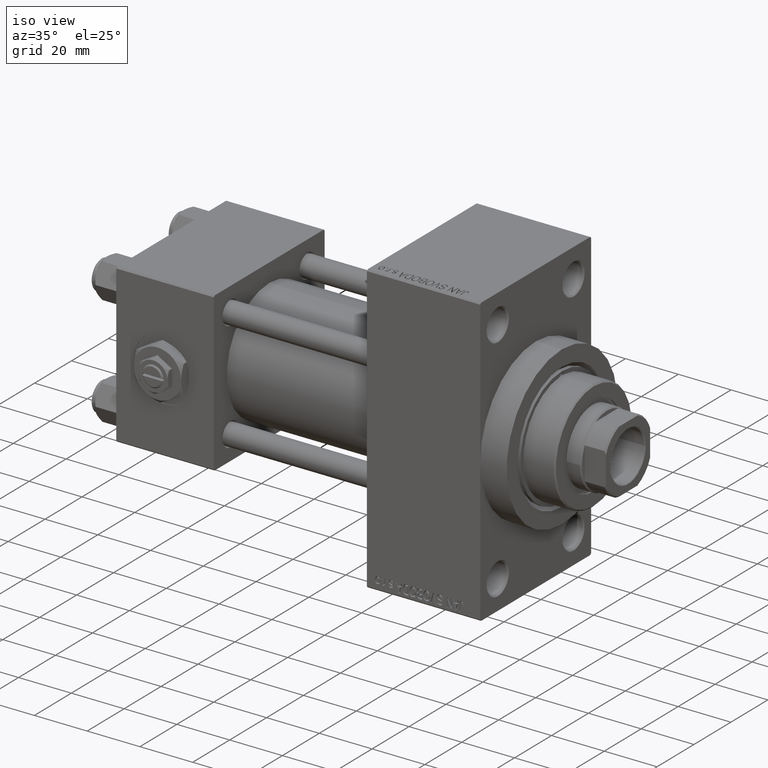
[diagram: clean part render]
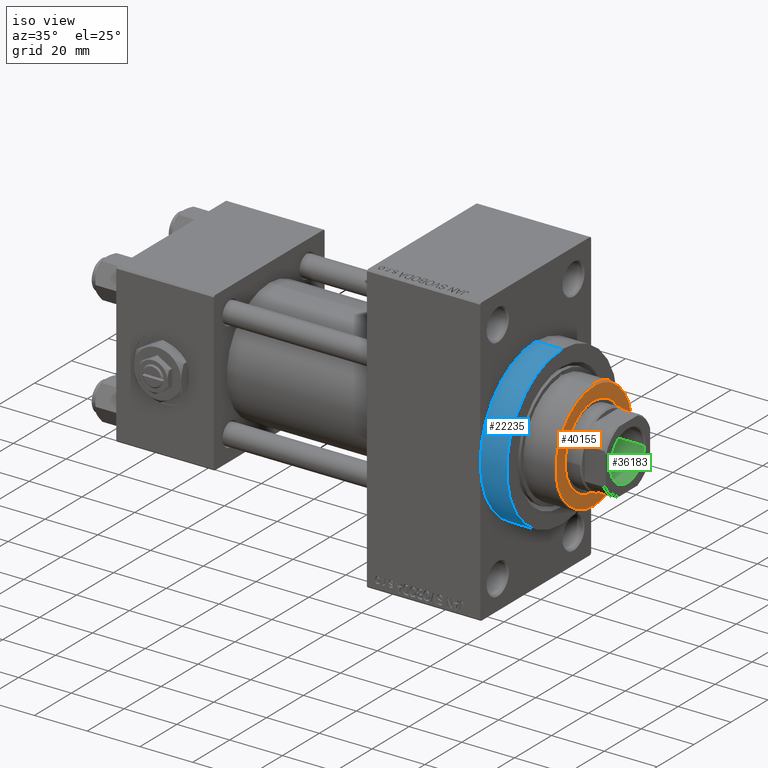
[diagram: same view with three faces highlighted in distinct colors, each labeled with its STEP entity id]
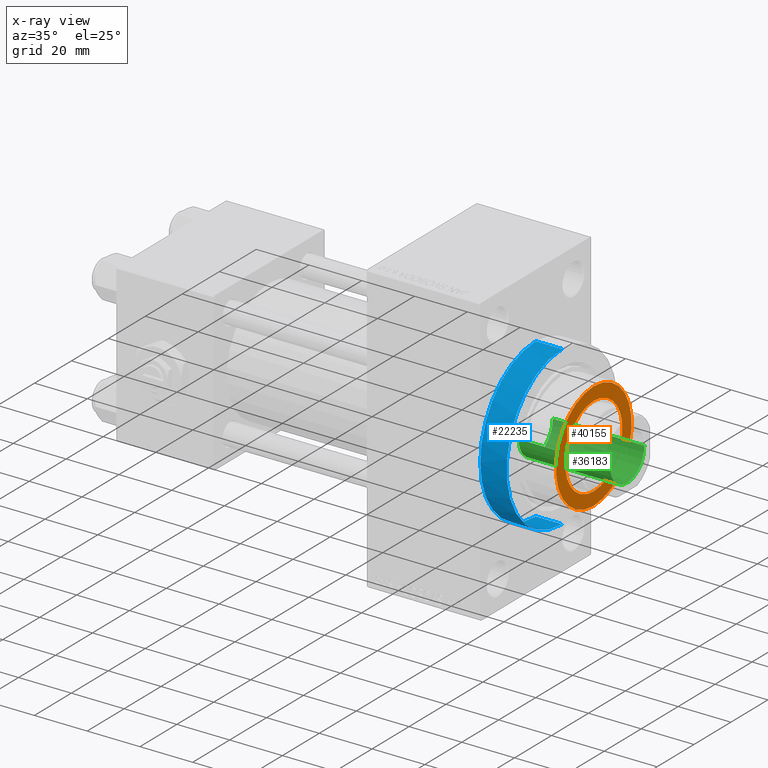
[diagram: x-ray of the same camera — body ghosted, the three highlighted faces saturated]
A machine part, iso view with three faces highlighted in distinct colors.
The next image is the same camera in x-ray (body ghosted, the three faces saturated) — at least one of them is partly hidden behind the body in this view.
Their STEP definitions:

[orange] entity #40155 — the highlighted planar face has unit normal (1, -0, -0).
#787 = FACE_BOUND ( 'NONE', #39779, .T. ) ;
#1779 = DIRECTION ( 'NONE',  ( 1.000000000000000000, 0.000000000000000000, -0.000000000000000000 ) ) ;
#2885 = EDGE_CURVE ( 'NONE', #43644, #44616, #23607, .T. ) ;
#3160 = DIRECTION ( 'NONE',  ( 1.000000000000000000, 0.000000000000000000, 0.000000000000000000 ) ) ;
#3265 = CARTESIAN_POINT ( 'NONE',  ( -15.50000000000000000, 1.898202538678397557E-15, 55.26000000000000512 ) ) ;
#5214 = PLANE ( 'NONE',  #35340 ) ;
#7017 = EDGE_CURVE ( 'NONE', #31053, #36398, #24556, .T. ) ;
#7096 = CARTESIAN_POINT ( 'NONE',  ( 0.000000000000000000, 0.000000000000000000, 55.26000000000000512 ) ) ;
#8525 = DIRECTION ( 'NONE',  ( 1.000000000000000000, 0.000000000000000000, 0.000000000000000000 ) ) ;
#10206 = CARTESIAN_POINT ( 'NONE',  ( 0.000000000000000000, 0.000000000000000000, 55.26000000000000512 ) ) ;
#10944 = CIRCLE ( 'NONE', #13340, 20.50000000000000355 ) ;
#11320 = ORIENTED_EDGE ( 'NONE', *, *, #17453, .F. ) ;
#12184 = CARTESIAN_POINT ( 'NONE',  ( -20.50000000000000355, 0.000000000000000000, 55.26000000000000512 ) ) ;
#12844 = AXIS2_PLACEMENT_3D ( 'NONE', #35752, #12959, #28309 ) ;
#12959 = DIRECTION ( 'NONE',  ( 0.000000000000000000, 0.000000000000000000, 1.000000000000000000 ) ) ;
#13340 = AXIS2_PLACEMENT_3D ( 'NONE', #20105, #35257, #8525 ) ;
#13385 = AXIS2_PLACEMENT_3D ( 'NONE', #10206, #21788, #45110 ) ;
#13515 = AXIS2_PLACEMENT_3D ( 'NONE', #7096, #18453, #3160 ) ;
#16116 = CARTESIAN_POINT ( 'NONE',  ( 0.000000000000000000, 0.000000000000000000, 55.26000000000000512 ) ) ;
#17453 = EDGE_CURVE ( 'NONE', #44616, #43644, #34173, .T. ) ;
#17828 = CARTESIAN_POINT ( 'NONE',  ( 20.50000000000000355, 2.541142108230758269E-15, 55.26000000000000512 ) ) ;
#18453 = DIRECTION ( 'NONE',  ( 0.000000000000000000, 0.000000000000000000, 1.000000000000000000 ) ) ;
#20105 = CARTESIAN_POINT ( 'NONE',  ( 0.000000000000000000, 0.000000000000000000, 55.26000000000000512 ) ) ;
#21788 = DIRECTION ( 'NONE',  ( 0.000000000000000000, 0.000000000000000000, 1.000000000000000000 ) ) ;
#23607 = CIRCLE ( 'NONE', #13385, 15.50000000000000000 ) ;
#24556 = CIRCLE ( 'NONE', #13515, 20.50000000000000355 ) ;
#26404 = ORIENTED_EDGE ( 'NONE', *, *, #2885, .F. ) ;
#28252 = ORIENTED_EDGE ( 'NONE', *, *, #33758, .T. ) ;
#28309 = DIRECTION ( 'NONE',  ( 1.000000000000000000, 0.000000000000000000, 0.000000000000000000 ) ) ;
#31053 = VERTEX_POINT ( 'NONE', #12184 ) ;
#33758 = EDGE_CURVE ( 'NONE', #36398, #31053, #10944, .T. ) ;
#34173 = CIRCLE ( 'NONE', #12844, 15.50000000000000000 ) ;
#35257 = DIRECTION ( 'NONE',  ( 0.000000000000000000, 0.000000000000000000, 1.000000000000000000 ) ) ;
#35340 = AXIS2_PLACEMENT_3D ( 'NONE', #16116, #42875, #1779 ) ;
#35752 = CARTESIAN_POINT ( 'NONE',  ( 0.000000000000000000, 0.000000000000000000, 55.26000000000000512 ) ) ;
#36398 = VERTEX_POINT ( 'NONE', #17828 ) ;
#37937 = CARTESIAN_POINT ( 'NONE',  ( 15.50000000000000000, 0.000000000000000000, 55.26000000000000512 ) ) ;
#39779 = EDGE_LOOP ( 'NONE', ( #11320, #26404 ) ) ;
#40155 = ADVANCED_FACE ( 'NONE', ( #787, #46602 ), #5214, .T. ) ;
#42875 = DIRECTION ( 'NONE',  ( 0.000000000000000000, 0.000000000000000000, 1.000000000000000000 ) ) ;
#43270 = EDGE_LOOP ( 'NONE', ( #48743, #28252 ) ) ;
#43644 = VERTEX_POINT ( 'NONE', #3265 ) ;
#44616 = VERTEX_POINT ( 'NONE', #37937 ) ;
#45110 = DIRECTION ( 'NONE',  ( 1.000000000000000000, 0.000000000000000000, 0.000000000000000000 ) ) ;
#46602 = FACE_OUTER_BOUND ( 'NONE', #43270, .T. ) ;
#48743 = ORIENTED_EDGE ( 'NONE', *, *, #7017, .T. ) ;

[blue] entity #22235 — the highlighted cylindrical surface (partial cylindrical patch) has radius 30 mm, axis along (-1, -0, -0).
#974 = EDGE_CURVE ( 'NONE', #43099, #43847, #10119, .T. ) ;
#1667 = CARTESIAN_POINT ( 'NONE',  ( 138.0000000000000000, 0.000000000000000000, 30.00000000000000000 ) ) ;
#3631 = CARTESIAN_POINT ( 'NONE',  ( 138.0000000000000000, 3.673940397442059178E-15, -30.00000000000000000 ) ) ;
#4648 = DIRECTION ( 'NONE',  ( 0.000000000000000000, 0.000000000000000000, 1.000000000000000000 ) ) ;
#4876 = CARTESIAN_POINT ( 'NONE',  ( 148.0000000000000284, 0.000000000000000000, 30.00000000000000000 ) ) ;
#5640 = VECTOR ( 'NONE', #34876, 1000.000000000000000 ) ;
#7259 = CARTESIAN_POINT ( 'NONE',  ( 148.0000000000000284, 0.000000000000000000, 0.000000000000000000 ) ) ;
#8114 = CYLINDRICAL_SURFACE ( 'NONE', #28030, 30.00000000000000000 ) ;
#8188 = EDGE_CURVE ( 'NONE', #18322, #16400, #12326, .T. ) ;
#8601 = LINE ( 'NONE', #4876, #38581 ) ;
#9354 = AXIS2_PLACEMENT_3D ( 'NONE', #44304, #39850, #21707 ) ;
#9847 = CIRCLE ( 'NONE', #32772, 30.00000000000000000 ) ;
#10119 = CIRCLE ( 'NONE', #9354, 30.00000000000000000 ) ;
#12326 = LINE ( 'NONE', #19734, #5640 ) ;
#14361 = ORIENTED_EDGE ( 'NONE', *, *, #43185, .T. ) ;
#15278 = DIRECTION ( 'NONE',  ( -1.000000000000000000, -0.000000000000000000, -0.000000000000000000 ) ) ;
#15746 = ORIENTED_EDGE ( 'NONE', *, *, #34163, .T. ) ;
#16024 = CARTESIAN_POINT ( 'NONE',  ( 148.0000000000000284, 0.000000000000000000, 0.000000000000000000 ) ) ;
#16400 = VERTEX_POINT ( 'NONE', #3631 ) ;
#17622 = ORIENTED_EDGE ( 'NONE', *, *, #8188, .F. ) ;
#18322 = VERTEX_POINT ( 'NONE', #28798 ) ;
#19734 = CARTESIAN_POINT ( 'NONE',  ( 148.0000000000000284, 3.673940397442059178E-15, -30.00000000000000000 ) ) ;
#19940 = DIRECTION ( 'NONE',  ( -1.000000000000000000, -0.000000000000000000, -0.000000000000000000 ) ) ;
#21561 = EDGE_CURVE ( 'NONE', #31429, #18322, #9847, .T. ) ;
#21707 = DIRECTION ( 'NONE',  ( 0.000000000000000000, 0.000000000000000000, -1.000000000000000000 ) ) ;
#22211 = DIRECTION ( 'NONE',  ( 1.000000000000000000, 0.000000000000000000, 0.000000000000000000 ) ) ;
#22235 = ADVANCED_FACE ( 'NONE', ( #34593 ), #8114, .T. ) ;
#22557 = DIRECTION ( 'NONE',  ( 1.000000000000000000, 0.000000000000000000, 0.000000000000000000 ) ) ;
#26051 = DIRECTION ( 'NONE',  ( 0.000000000000000000, 0.000000000000000000, -1.000000000000000000 ) ) ;
#26188 = CARTESIAN_POINT ( 'NONE',  ( 138.0000000000000000, 0.000000000000000000, 0.000000000000000000 ) ) ;
#28030 = AXIS2_PLACEMENT_3D ( 'NONE', #16024, #15278, #4648 ) ;
#28798 = CARTESIAN_POINT ( 'NONE',  ( 148.0000000000000284, 3.673940397442059178E-15, -30.00000000000000000 ) ) ;
#31429 = VERTEX_POINT ( 'NONE', #44027 ) ;
#32670 = DIRECTION ( 'NONE',  ( 0.000000000000000000, 0.000000000000000000, -1.000000000000000000 ) ) ;
#32772 = AXIS2_PLACEMENT_3D ( 'NONE', #7259, #22557, #26051 ) ;
#34163 = EDGE_CURVE ( 'NONE', #43847, #16400, #37021, .T. ) ;
#34593 = FACE_OUTER_BOUND ( 'NONE', #46714, .T. ) ;
#34664 = AXIS2_PLACEMENT_3D ( 'NONE', #26188, #22211, #32670 ) ;
#34876 = DIRECTION ( 'NONE',  ( -1.000000000000000000, -0.000000000000000000, -0.000000000000000000 ) ) ;
#37021 = CIRCLE ( 'NONE', #34664, 30.00000000000000000 ) ;
#38581 = VECTOR ( 'NONE', #19940, 1000.000000000000000 ) ;
#39850 = DIRECTION ( 'NONE',  ( 1.000000000000000000, 0.000000000000000000, 0.000000000000000000 ) ) ;
#41602 = ORIENTED_EDGE ( 'NONE', *, *, #974, .T. ) ;
#42844 = CARTESIAN_POINT ( 'NONE',  ( 138.0000000000000000, -30.00000000000000000, 0.000000000000000000 ) ) ;
#43099 = VERTEX_POINT ( 'NONE', #1667 ) ;
#43185 = EDGE_CURVE ( 'NONE', #31429, #43099, #8601, .T. ) ;
#43847 = VERTEX_POINT ( 'NONE', #42844 ) ;
#44027 = CARTESIAN_POINT ( 'NONE',  ( 148.0000000000000284, 0.000000000000000000, 30.00000000000000000 ) ) ;
#44304 = CARTESIAN_POINT ( 'NONE',  ( 138.0000000000000000, 0.000000000000000000, 0.000000000000000000 ) ) ;
#44907 = ORIENTED_EDGE ( 'NONE', *, *, #21561, .F. ) ;
#46714 = EDGE_LOOP ( 'NONE', ( #17622, #44907, #14361, #41602, #15746 ) ) ;

[green] entity #36183 — the highlighted cylindrical surface (edge-blend (fillet) strip) has radius 9.25 mm, axis along (1, 0, 0).
#889 = DIRECTION ( 'NONE',  ( 1.000000000000000000, 0.000000000000000000, 0.000000000000000000 ) ) ;
#2431 = VECTOR ( 'NONE', #30206, 1000.000000000000000 ) ;
#3341 = CYLINDRICAL_SURFACE ( 'NONE', #40367, 9.249999999999994671 ) ;
#3482 = VERTEX_POINT ( 'NONE', #32170 ) ;
#6989 = CIRCLE ( 'NONE', #29911, 9.249999999999992895 ) ;
#7038 = CARTESIAN_POINT ( 'NONE',  ( 0.000000000000000000, 0.000000000000000000, 136.0000000000000000 ) ) ;
#7238 = EDGE_CURVE ( 'NONE', #48266, #3482, #8773, .T. ) ;
#8773 = CIRCLE ( 'NONE', #30882, 9.249999999999994671 ) ;
#10278 = CARTESIAN_POINT ( 'NONE',  ( -9.249999999999992895, 1.132798289211300712E-15, 101.0000000000000000 ) ) ;
#13002 = EDGE_CURVE ( 'NONE', #31707, #3482, #45102, .T. ) ;
#15102 = CARTESIAN_POINT ( 'NONE',  ( 9.249999999999994671, 0.000000000000000000, 135.7000000000000455 ) ) ;
#16151 = DIRECTION ( 'NONE',  ( -0.000000000000000000, -0.000000000000000000, 1.000000000000000000 ) ) ;
#16281 = EDGE_CURVE ( 'NONE', #32930, #48266, #36569, .T. ) ;
#19533 = CARTESIAN_POINT ( 'NONE',  ( -9.249999999999994671, 1.132798289211300909E-15, 136.0000000000000000 ) ) ;
#20834 = CARTESIAN_POINT ( 'NONE',  ( 9.249999999999992895, 0.000000000000000000, 101.0000000000000000 ) ) ;
#25080 = ORIENTED_EDGE ( 'NONE', *, *, #13002, .F. ) ;
#27004 = VECTOR ( 'NONE', #43789, 1000.000000000000000 ) ;
#27290 = ORIENTED_EDGE ( 'NONE', *, *, #16281, .T. ) ;
#29391 = CARTESIAN_POINT ( 'NONE',  ( 9.249999999999994671, 0.000000000000000000, 136.0000000000000000 ) ) ;
#29790 = DIRECTION ( 'NONE',  ( -0.000000000000000000, -0.000000000000000000, 1.000000000000000000 ) ) ;
#29911 = AXIS2_PLACEMENT_3D ( 'NONE', #38935, #16151, #42651 ) ;
#30028 = ORIENTED_EDGE ( 'NONE', *, *, #44699, .F. ) ;
#30206 = DIRECTION ( 'NONE',  ( -0.000000000000000000, -0.000000000000000000, 1.000000000000000000 ) ) ;
#30882 = AXIS2_PLACEMENT_3D ( 'NONE', #45461, #38262, #889 ) ;
#31707 = VERTEX_POINT ( 'NONE', #10278 ) ;
#32170 = CARTESIAN_POINT ( 'NONE',  ( -9.249999999999994671, 1.132798289211300909E-15, 135.7000000000000455 ) ) ;
#32930 = VERTEX_POINT ( 'NONE', #20834 ) ;
#36183 = ADVANCED_FACE ( 'NONE', ( #40944 ), #3341, .F. ) ;
#36569 = LINE ( 'NONE', #29391, #27004 ) ;
#38262 = DIRECTION ( 'NONE',  ( 0.000000000000000000, 0.000000000000000000, 1.000000000000000000 ) ) ;
#38935 = CARTESIAN_POINT ( 'NONE',  ( 0.000000000000000000, 0.000000000000000000, 101.0000000000000000 ) ) ;
#39863 = ORIENTED_EDGE ( 'NONE', *, *, #7238, .T. ) ;
#40367 = AXIS2_PLACEMENT_3D ( 'NONE', #7038, #29790, #40466 ) ;
#40466 = DIRECTION ( 'NONE',  ( 1.000000000000000000, 0.000000000000000000, 0.000000000000000000 ) ) ;
#40944 = FACE_OUTER_BOUND ( 'NONE', #47829, .T. ) ;
#42651 = DIRECTION ( 'NONE',  ( 1.000000000000000000, 0.000000000000000000, 0.000000000000000000 ) ) ;
#43789 = DIRECTION ( 'NONE',  ( -0.000000000000000000, -0.000000000000000000, 1.000000000000000000 ) ) ;
#44699 = EDGE_CURVE ( 'NONE', #32930, #31707, #6989, .T. ) ;
#45102 = LINE ( 'NONE', #19533, #2431 ) ;
#45461 = CARTESIAN_POINT ( 'NONE',  ( 0.000000000000000000, 0.000000000000000000, 135.7000000000000455 ) ) ;
#47829 = EDGE_LOOP ( 'NONE', ( #25080, #30028, #27290, #39863 ) ) ;
#48266 = VERTEX_POINT ( 'NONE', #15102 ) ;